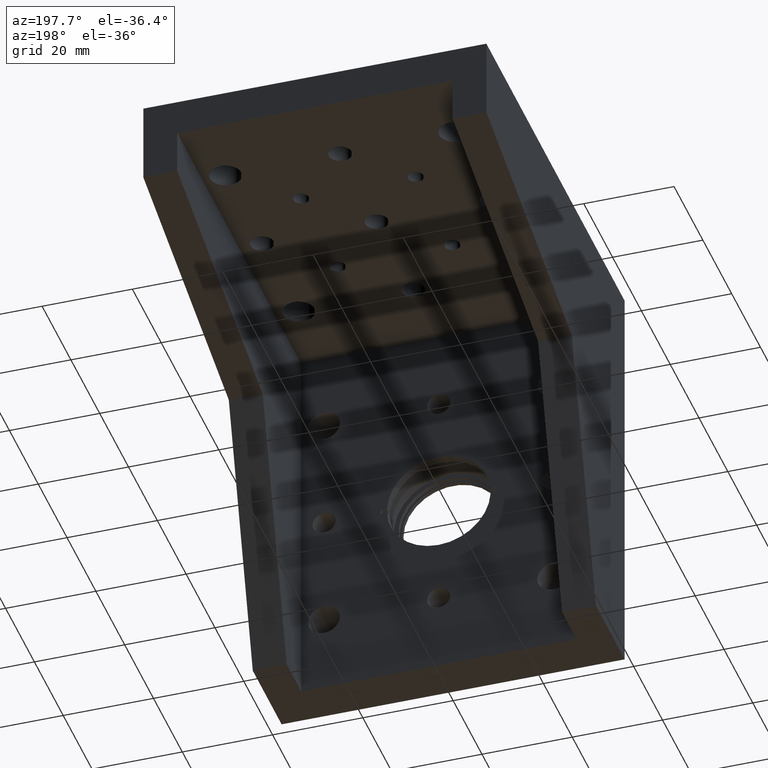
[diagram: clean part render]
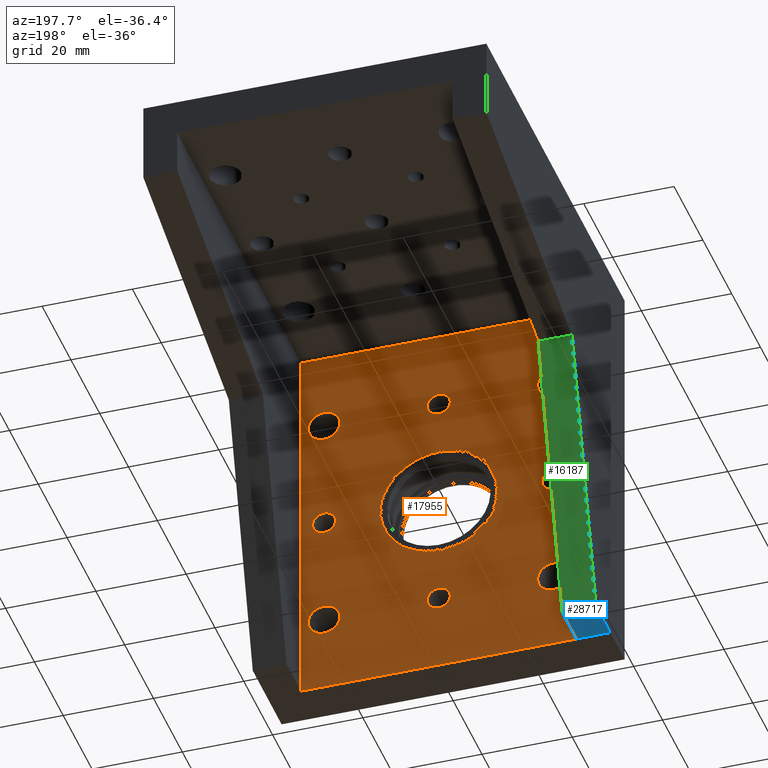
[diagram: same view with three faces highlighted in distinct colors, each labeled with its STEP entity id]
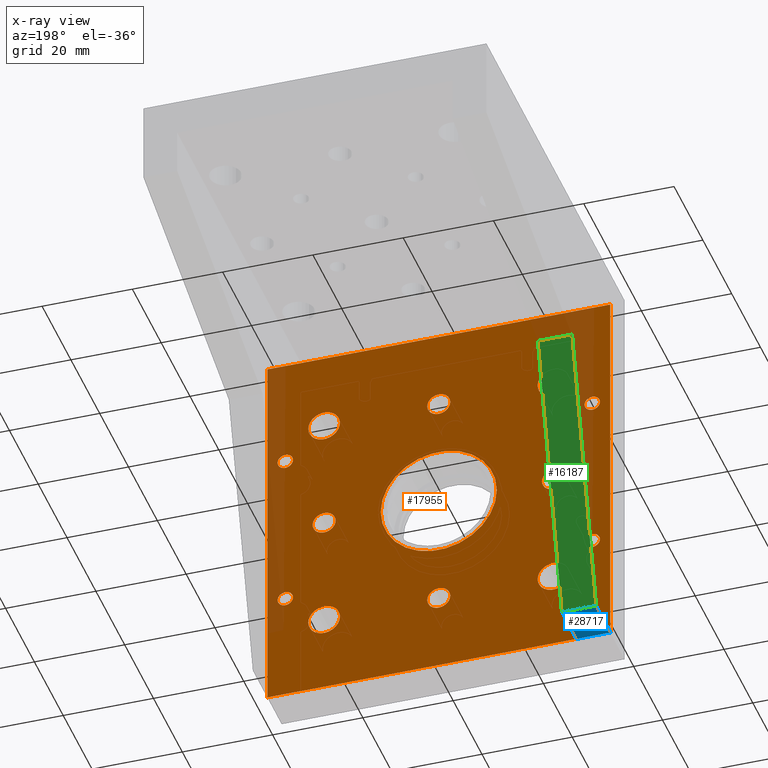
[diagram: x-ray of the same camera — body ghosted, the three highlighted faces saturated]
A machine part, auxiliary view with three faces highlighted in distinct colors.
The next image is the same camera in x-ray (body ghosted, the three faces saturated) — at least one of them is partly hidden behind the body in this view.
Their STEP definitions:

[orange] entity #17955 — the highlighted planar face has unit normal (-0, -1, -0).
#47 = DIRECTION ( 'NONE',  ( 1.000000000000000000, 0.0000000000000000000, 0.0000000000000000000 ) ) ;
#225 = DIRECTION ( 'NONE',  ( -1.848892746611748400E-031, -1.000000000000000000, -1.224606353822377300E-016 ) ) ;
#242 = ORIENTED_EDGE ( 'NONE', *, *, #15036, .T. ) ;
#259 = CARTESIAN_POINT ( 'NONE',  ( -38.00000000000001400, 9.999999999999996400, 43.00000000000000000 ) ) ;
#304 = CARTESIAN_POINT ( 'NONE',  ( 38.00000000000001400, 10.00000000000000700, -43.00000000000000000 ) ) ;
#504 = AXIS2_PLACEMENT_3D ( 'NONE', #18998, #33870, #18617 ) ;
#654 = AXIS2_PLACEMENT_3D ( 'NONE', #16160, #2184, #29336 ) ;
#763 = EDGE_CURVE ( 'NONE', #22957, #20616, #25033, .T. ) ;
#830 = FACE_OUTER_BOUND ( 'NONE', #5810, .T. ) ;
#852 = EDGE_CURVE ( 'NONE', #34558, #22349, #23299, .T. ) ;
#951 = ORIENTED_EDGE ( 'NONE', *, *, #7861, .T. ) ;
#955 = VECTOR ( 'NONE', #6262, 1000.000000000000000 ) ;
#1170 = EDGE_CURVE ( 'NONE', #20873, #17812, #14758, .T. ) ;
#1284 = EDGE_CURVE ( 'NONE', #34166, #33123, #23261, .T. ) ;
#1398 = VERTEX_POINT ( 'NONE', #31282 ) ;
#1438 = CIRCLE ( 'NONE', #17291, 1.700000000000000200 ) ;
#1492 = DIRECTION ( 'NONE',  ( -1.848892746611748400E-031, -1.000000000000000000, -1.224606353822377300E-016 ) ) ;
#1662 = CIRCLE ( 'NONE', #18505, 12.85000000000000000 ) ;
#1780 = CARTESIAN_POINT ( 'NONE',  ( 38.00000000000001400, 9.999999999999996400, 43.00000000000000000 ) ) ;
#1882 = ORIENTED_EDGE ( 'NONE', *, *, #23996, .T. ) ;
#1932 = CARTESIAN_POINT ( 'NONE',  ( 32.30000000000000400, 10.00000000000000000, 18.00000000000000000 ) ) ;
#2066 = DIRECTION ( 'NONE',  ( -1.848892746611748400E-031, -1.000000000000000000, -1.224606353822377300E-016 ) ) ;
#2123 = CIRCLE ( 'NONE', #35042, 3.499999999999989300 ) ;
#2184 = DIRECTION ( 'NONE',  ( -1.848892746611748400E-031, -1.000000000000000000, -1.224606353822377300E-016 ) ) ;
#2191 = DIRECTION ( 'NONE',  ( -1.000000000000000000, 0.0000000000000000000, -3.772338983012584600E-032 ) ) ;
#2318 = ORIENTED_EDGE ( 'NONE', *, *, #33200, .F. ) ;
#2512 = CARTESIAN_POINT ( 'NONE',  ( 21.90000000000000900, 9.999999999999992900, 25.40000000000000200 ) ) ;
#2517 = CARTESIAN_POINT ( 'NONE',  ( -34.00000000000000000, 10.00000000000000000, 18.00000000000000000 ) ) ;
#2623 = ORIENTED_EDGE ( 'NONE', *, *, #13317, .T. ) ;
#2660 = VERTEX_POINT ( 'NONE', #26675 ) ;
#2777 = DIRECTION ( 'NONE',  ( -1.848892746611748400E-031, -1.000000000000000000, -1.224606353822377300E-016 ) ) ;
#2965 = FACE_BOUND ( 'NONE', #29286, .T. ) ;
#2986 = ORIENTED_EDGE ( 'NONE', *, *, #22181, .T. ) ;
#2997 = DIRECTION ( 'NONE',  ( -1.600897037462275600E-047, -1.000000000000000000, -1.224606353822377000E-016 ) ) ;
#3056 = CIRCLE ( 'NONE', #31000, 2.552699999999987800 ) ;
#3091 = AXIS2_PLACEMENT_3D ( 'NONE', #16680, #30211, #8727 ) ;
#3243 = EDGE_CURVE ( 'NONE', #34322, #29258, #1438, .T. ) ;
#3246 = CARTESIAN_POINT ( 'NONE',  ( 27.95269999999998600, 10.00000000000000400, -1.101245626367893000E-015 ) ) ;
#3390 = CARTESIAN_POINT ( 'NONE',  ( -38.00000000000001400, 9.999999999999996400, 43.00000000000000000 ) ) ;
#3413 = FACE_BOUND ( 'NONE', #23402, .T. ) ;
#3460 = DIRECTION ( 'NONE',  ( 1.000000000000000000, 0.0000000000000000000, 0.0000000000000000000 ) ) ;
#3878 = EDGE_CURVE ( 'NONE', #16671, #21569, #13334, .T. ) ;
#3943 = DIRECTION ( 'NONE',  ( -1.848892746611748400E-031, -1.000000000000000000, -1.224606353822377300E-016 ) ) ;
#4022 = CARTESIAN_POINT ( 'NONE',  ( 25.39999999999999900, 10.00000000000000000, -25.39999999999999900 ) ) ;
#4267 = VERTEX_POINT ( 'NONE', #2512 ) ;
#4319 = AXIS2_PLACEMENT_3D ( 'NONE', #12394, #29000, #7027 ) ;
#4323 = VERTEX_POINT ( 'NONE', #13481 ) ;
#4403 = ORIENTED_EDGE ( 'NONE', *, *, #3878, .F. ) ;
#4453 = CARTESIAN_POINT ( 'NONE',  ( 34.00000000000000000, 10.00000000000000000, 18.00000000000000000 ) ) ;
#4573 = ORIENTED_EDGE ( 'NONE', *, *, #852, .F. ) ;
#4772 = CIRCLE ( 'NONE', #8536, 3.499999999999989300 ) ;
#4784 = EDGE_CURVE ( 'NONE', #4323, #14611, #2123, .T. ) ;
#4795 = DIRECTION ( 'NONE',  ( 1.000000000000000000, 0.0000000000000000000, 0.0000000000000000000 ) ) ;
#4810 = CARTESIAN_POINT ( 'NONE',  ( -22.84730000000001100, 10.00000000000000400, 5.119960113300660700E-015 ) ) ;
#4877 = CARTESIAN_POINT ( 'NONE',  ( 25.39999999999999900, 10.00000000000000000, -25.39999999999999900 ) ) ;
#4955 = CIRCLE ( 'NONE', #14831, 2.552699999999987800 ) ;
#5127 = CARTESIAN_POINT ( 'NONE',  ( 0.0000000000000000000, 10.00000000000000200, 0.0000000000000000000 ) ) ;
#5318 = AXIS2_PLACEMENT_3D ( 'NONE', #11110, #225, #6363 ) ;
#5429 = AXIS2_PLACEMENT_3D ( 'NONE', #24241, #13880, #18384 ) ;
#5496 = ORIENTED_EDGE ( 'NONE', *, *, #13835, .F. ) ;
#5693 = CARTESIAN_POINT ( 'NONE',  ( 22.84730000000001100, 10.00000000000000400, -8.015580378750519000E-016 ) ) ;
#5806 = AXIS2_PLACEMENT_3D ( 'NONE', #16777, #8358, #29960 ) ;
#5810 = EDGE_LOOP ( 'NONE', ( #17213, #4403, #5496, #23267 ) ) ;
#5987 = CARTESIAN_POINT ( 'NONE',  ( -38.00000000000001400, 10.00000000000000700, -43.00000000000000000 ) ) ;
#5989 = FACE_BOUND ( 'NONE', #24573, .T. ) ;
#6101 = DIRECTION ( 'NONE',  ( -1.848892746611748400E-031, -1.000000000000000000, -1.224606353822377300E-016 ) ) ;
#6262 = DIRECTION ( 'NONE',  ( -1.000000000000000000, 2.189528850507526700E-047, -4.806702261571226000E-032 ) ) ;
#6333 = VERTEX_POINT ( 'NONE', #18490 ) ;
#6359 = VERTEX_POINT ( 'NONE', #24230 ) ;
#6363 = DIRECTION ( 'NONE',  ( 1.000000000000000000, 0.0000000000000000000, 0.0000000000000000000 ) ) ;
#6508 = CARTESIAN_POINT ( 'NONE',  ( 38.00000000000001400, 9.999999999999996400, 43.00000000000000000 ) ) ;
#6712 = ORIENTED_EDGE ( 'NONE', *, *, #1284, .F. ) ;
#6834 = EDGE_LOOP ( 'NONE', ( #9305, #4573 ) ) ;
#6985 = ORIENTED_EDGE ( 'NONE', *, *, #12533, .T. ) ;
#6996 = DIRECTION ( 'NONE',  ( 1.000000000000000000, 0.0000000000000000000, 0.0000000000000000000 ) ) ;
#7027 = DIRECTION ( 'NONE',  ( -1.000000000000000000, 0.0000000000000000000, 0.0000000000000000000 ) ) ;
#7037 = CARTESIAN_POINT ( 'NONE',  ( -35.70000000000000300, 10.00000000000000400, -18.00000000000000400 ) ) ;
#7205 = DIRECTION ( 'NONE',  ( 5.493374013224255900E-032, -1.224606353822377800E-016, 1.000000000000000000 ) ) ;
#7415 = CARTESIAN_POINT ( 'NONE',  ( -28.89999999999998800, 9.999999999999992900, 25.39999999999999900 ) ) ;
#7558 = DIRECTION ( 'NONE',  ( -1.848892746611748400E-031, -1.000000000000000000, -1.224606353822377300E-016 ) ) ;
#7800 = AXIS2_PLACEMENT_3D ( 'NONE', #21201, #10047, #15520 ) ;
#7861 = EDGE_CURVE ( 'NONE', #11446, #1398, #8829, .T. ) ;
#8349 = VERTEX_POINT ( 'NONE', #7037 ) ;
#8358 = DIRECTION ( 'NONE',  ( 1.848892746611748400E-031, 1.000000000000000000, 1.224606353822377300E-016 ) ) ;
#8517 = CARTESIAN_POINT ( 'NONE',  ( -25.39999999999999900, 10.00000000000000400, 5.419647701793501300E-015 ) ) ;
#8536 = AXIS2_PLACEMENT_3D ( 'NONE', #24478, #2777, #16379 ) ;
#8590 = VERTEX_POINT ( 'NONE', #13665 ) ;
#8602 = ORIENTED_EDGE ( 'NONE', *, *, #1170, .F. ) ;
#8641 = CARTESIAN_POINT ( 'NONE',  ( -3.627410363077836500E-015, 10.00000000000000000, 25.39999999999999900 ) ) ;
#8686 = VERTEX_POINT ( 'NONE', #25237 ) ;
#8727 = DIRECTION ( 'NONE',  ( -1.000000000000000000, 0.0000000000000000000, -3.772338983012584600E-032 ) ) ;
#8829 = CIRCLE ( 'NONE', #504, 3.499999999999989300 ) ;
#8830 = EDGE_LOOP ( 'NONE', ( #33685, #1882 ) ) ;
#8882 = CIRCLE ( 'NONE', #5318, 3.499999999999989300 ) ;
#9305 = ORIENTED_EDGE ( 'NONE', *, *, #26270, .F. ) ;
#9331 = EDGE_LOOP ( 'NONE', ( #30726, #31301 ) ) ;
#9474 = ORIENTED_EDGE ( 'NONE', *, *, #11962, .F. ) ;
#9612 = CARTESIAN_POINT ( 'NONE',  ( 32.30000000000000400, 10.00000000000000400, -18.00000000000000400 ) ) ;
#9715 = DIRECTION ( 'NONE',  ( 1.848892746611748400E-031, 1.000000000000000000, 1.224606353822377300E-016 ) ) ;
#9819 = FACE_BOUND ( 'NONE', #20405, .T. ) ;
#10047 = DIRECTION ( 'NONE',  ( -1.848892746611748400E-031, -1.000000000000000000, -1.224606353822377300E-016 ) ) ;
#10282 = EDGE_CURVE ( 'NONE', #18887, #11354, #3056, .T. ) ;
#10403 = ORIENTED_EDGE ( 'NONE', *, *, #18137, .T. ) ;
#10507 = DIRECTION ( 'NONE',  ( 1.848892746611748400E-031, 1.000000000000000000, 1.224606353822377300E-016 ) ) ;
#10795 = ORIENTED_EDGE ( 'NONE', *, *, #17827, .T. ) ;
#11110 = CARTESIAN_POINT ( 'NONE',  ( 25.39999999999999900, 9.999999999999992900, 25.40000000000000200 ) ) ;
#11113 = DIRECTION ( 'NONE',  ( 1.000000000000000000, -2.189528850507526700E-047, 4.806702261571226000E-032 ) ) ;
#11354 = VERTEX_POINT ( 'NONE', #34770 ) ;
#11446 = VERTEX_POINT ( 'NONE', #7415 ) ;
#11471 = CARTESIAN_POINT ( 'NONE',  ( -25.39999999999999900, 10.00000000000000000, -25.39999999999999900 ) ) ;
#11608 = VERTEX_POINT ( 'NONE', #304 ) ;
#11807 = AXIS2_PLACEMENT_3D ( 'NONE', #2517, #32779, #13261 ) ;
#11962 = EDGE_CURVE ( 'NONE', #33123, #34166, #4955, .T. ) ;
#12394 = CARTESIAN_POINT ( 'NONE',  ( -25.39999999999999900, 10.00000000000000400, 5.419647701793501300E-015 ) ) ;
#12474 = CARTESIAN_POINT ( 'NONE',  ( 35.70000000000000300, 10.00000000000000000, 18.00000000000000000 ) ) ;
#12533 = EDGE_CURVE ( 'NONE', #15751, #2660, #16459, .T. ) ;
#12574 = CARTESIAN_POINT ( 'NONE',  ( -21.90000000000000900, 10.00000000000000000, -25.39999999999999900 ) ) ;
#12617 = CIRCLE ( 'NONE', #654, 1.700000000000000200 ) ;
#12788 = AXIS2_PLACEMENT_3D ( 'NONE', #4022, #1492, #22966 ) ;
#13009 = EDGE_CURVE ( 'NONE', #6333, #28633, #12617, .T. ) ;
#13137 = VECTOR ( 'NONE', #31336, 1000.000000000000000 ) ;
#13230 = CIRCLE ( 'NONE', #11807, 1.700000000000000200 ) ;
#13261 = DIRECTION ( 'NONE',  ( 1.000000000000000000, 0.0000000000000000000, 0.0000000000000000000 ) ) ;
#13317 = EDGE_CURVE ( 'NONE', #28633, #6333, #17684, .T. ) ;
#13334 = LINE ( 'NONE', #3390, #955 ) ;
#13416 = CARTESIAN_POINT ( 'NONE',  ( 12.85000000000000000, 10.00000000000000200, 1.022598277684278700E-015 ) ) ;
#13481 = CARTESIAN_POINT ( 'NONE',  ( 28.89999999999998800, 10.00000000000000000, -25.39999999999999900 ) ) ;
#13556 = CARTESIAN_POINT ( 'NONE',  ( 34.00000000000000000, 10.00000000000000000, 18.00000000000000000 ) ) ;
#13665 = CARTESIAN_POINT ( 'NONE',  ( -32.30000000000000400, 10.00000000000000400, -18.00000000000000400 ) ) ;
#13835 = EDGE_CURVE ( 'NONE', #11608, #16671, #20158, .T. ) ;
#13880 = DIRECTION ( 'NONE',  ( 1.848892746611748400E-031, 1.000000000000000000, 1.224606353822377300E-016 ) ) ;
#13918 = EDGE_CURVE ( 'NONE', #8349, #8590, #30056, .T. ) ;
#14051 = AXIS2_PLACEMENT_3D ( 'NONE', #8517, #24447, #19541 ) ;
#14317 = CARTESIAN_POINT ( 'NONE',  ( -25.39999999999999900, 10.00000000000000000, -25.39999999999999900 ) ) ;
#14595 = EDGE_LOOP ( 'NONE', ( #2986, #10403 ) ) ;
#14611 = VERTEX_POINT ( 'NONE', #19495 ) ;
#14673 = CARTESIAN_POINT ( 'NONE',  ( 25.39999999999999900, 9.999999999999992900, 25.40000000000000200 ) ) ;
#14725 = EDGE_LOOP ( 'NONE', ( #242, #951 ) ) ;
#14758 = CIRCLE ( 'NONE', #14051, 2.552699999999987800 ) ;
#14831 = AXIS2_PLACEMENT_3D ( 'NONE', #34613, #32220, #2191 ) ;
#15036 = EDGE_CURVE ( 'NONE', #1398, #11446, #4772, .T. ) ;
#15115 = AXIS2_PLACEMENT_3D ( 'NONE', #25270, #30793, #15119 ) ;
#15119 = DIRECTION ( 'NONE',  ( 1.000000000000000000, 0.0000000000000000000, 0.0000000000000000000 ) ) ;
#15257 = DIRECTION ( 'NONE',  ( 1.000000000000000000, 0.0000000000000000000, 0.0000000000000000000 ) ) ;
#15362 = FACE_BOUND ( 'NONE', #14725, .T. ) ;
#15454 = AXIS2_PLACEMENT_3D ( 'NONE', #5987, #2997, #11113 ) ;
#15460 = CARTESIAN_POINT ( 'NONE',  ( -27.95269999999998600, 10.00000000000000400, 5.419647701793501300E-015 ) ) ;
#15520 = DIRECTION ( 'NONE',  ( 1.000000000000000000, 0.0000000000000000000, 0.0000000000000000000 ) ) ;
#15751 = VERTEX_POINT ( 'NONE', #31358 ) ;
#15881 = ORIENTED_EDGE ( 'NONE', *, *, #10282, .F. ) ;
#15931 = EDGE_LOOP ( 'NONE', ( #8602, #2318 ) ) ;
#15978 = AXIS2_PLACEMENT_3D ( 'NONE', #26886, #7558, #4795 ) ;
#16160 = CARTESIAN_POINT ( 'NONE',  ( 34.00000000000000000, 10.00000000000000400, -18.00000000000000400 ) ) ;
#16368 = DIRECTION ( 'NONE',  ( -1.000000000000000000, 0.0000000000000000000, 0.0000000000000000000 ) ) ;
#16379 = DIRECTION ( 'NONE',  ( 1.000000000000000000, 0.0000000000000000000, 0.0000000000000000000 ) ) ;
#16459 = CIRCLE ( 'NONE', #15978, 1.700000000000000200 ) ;
#16671 = VERTEX_POINT ( 'NONE', #6508 ) ;
#16680 = CARTESIAN_POINT ( 'NONE',  ( 25.39999999999999900, 10.00000000000000400, -8.015580378750518000E-016 ) ) ;
#16777 = CARTESIAN_POINT ( 'NONE',  ( -3.627410363077836500E-015, 10.00000000000000700, -25.39999999999999900 ) ) ;
#16822 = DIRECTION ( 'NONE',  ( 1.848892746611748400E-031, 1.000000000000000000, 1.224606353822377300E-016 ) ) ;
#17144 = CIRCLE ( 'NONE', #15115, 1.700000000000000200 ) ;
#17206 = VECTOR ( 'NONE', #7205, 1000.000000000000000 ) ;
#17213 = ORIENTED_EDGE ( 'NONE', *, *, #18856, .F. ) ;
#17291 = AXIS2_PLACEMENT_3D ( 'NONE', #13556, #21506, #47 ) ;
#17296 = ORIENTED_EDGE ( 'NONE', *, *, #763, .F. ) ;
#17436 = CIRCLE ( 'NONE', #22852, 2.552699999999987800 ) ;
#17599 = CARTESIAN_POINT ( 'NONE',  ( -28.89999999999998800, 10.00000000000000000, -25.39999999999999900 ) ) ;
#17684 = CIRCLE ( 'NONE', #20745, 1.700000000000000200 ) ;
#17812 = VERTEX_POINT ( 'NONE', #4810 ) ;
#17827 = EDGE_CURVE ( 'NONE', #2660, #15751, #13230, .T. ) ;
#17955 = ADVANCED_FACE ( 'NONE', ( #15362, #3413, #2965, #22585, #27766, #34216, #31642, #26465, #29060, #20449, #21711, #9819, #5989, #830 ), #33245, .F. ) ;
#18137 = EDGE_CURVE ( 'NONE', #20843, #29285, #24279, .T. ) ;
#18384 = DIRECTION ( 'NONE',  ( -1.000000000000000000, 0.0000000000000000000, 0.0000000000000000000 ) ) ;
#18490 = CARTESIAN_POINT ( 'NONE',  ( 35.70000000000000300, 10.00000000000000400, -18.00000000000000400 ) ) ;
#18505 = AXIS2_PLACEMENT_3D ( 'NONE', #27253, #21927, #32785 ) ;
#18617 = DIRECTION ( 'NONE',  ( 1.000000000000000000, 0.0000000000000000000, 0.0000000000000000000 ) ) ;
#18856 = EDGE_CURVE ( 'NONE', #21569, #8686, #31998, .T. ) ;
#18887 = VERTEX_POINT ( 'NONE', #23274 ) ;
#18998 = CARTESIAN_POINT ( 'NONE',  ( -25.39999999999999900, 9.999999999999992900, 25.39999999999999900 ) ) ;
#19364 = ORIENTED_EDGE ( 'NONE', *, *, #4784, .T. ) ;
#19495 = CARTESIAN_POINT ( 'NONE',  ( 21.90000000000000900, 10.00000000000000000, -25.39999999999999900 ) ) ;
#19541 = DIRECTION ( 'NONE',  ( -1.000000000000000000, 0.0000000000000000000, 0.0000000000000000000 ) ) ;
#19888 = DIRECTION ( 'NONE',  ( 1.000000000000000000, 0.0000000000000000000, 0.0000000000000000000 ) ) ;
#19918 = AXIS2_PLACEMENT_3D ( 'NONE', #5127, #10507, #35373 ) ;
#20158 = LINE ( 'NONE', #1780, #17206 ) ;
#20244 = DIRECTION ( 'NONE',  ( 1.000000000000000000, 0.0000000000000000000, 0.0000000000000000000 ) ) ;
#20405 = EDGE_LOOP ( 'NONE', ( #33790, #2623 ) ) ;
#20449 = FACE_BOUND ( 'NONE', #9331, .T. ) ;
#20616 = VERTEX_POINT ( 'NONE', #30308 ) ;
#20625 = DIRECTION ( 'NONE',  ( -1.000000000000000000, 0.0000000000000000000, 0.0000000000000000000 ) ) ;
#20745 = AXIS2_PLACEMENT_3D ( 'NONE', #31725, #2066, #6996 ) ;
#20843 = VERTEX_POINT ( 'NONE', #17599 ) ;
#20873 = VERTEX_POINT ( 'NONE', #15460 ) ;
#21201 = CARTESIAN_POINT ( 'NONE',  ( -34.00000000000000000, 10.00000000000000400, -18.00000000000000400 ) ) ;
#21202 = EDGE_CURVE ( 'NONE', #14611, #4323, #22300, .T. ) ;
#21407 = CIRCLE ( 'NONE', #5429, 2.552699999999987800 ) ;
#21506 = DIRECTION ( 'NONE',  ( -1.848892746611748400E-031, -1.000000000000000000, -1.224606353822377300E-016 ) ) ;
#21569 = VERTEX_POINT ( 'NONE', #259 ) ;
#21575 = CIRCLE ( 'NONE', #32347, 3.499999999999989300 ) ;
#21711 = FACE_BOUND ( 'NONE', #8830, .T. ) ;
#21927 = DIRECTION ( 'NONE',  ( 1.848892746611748400E-031, 1.000000000000000000, 1.224606353822377300E-016 ) ) ;
#22181 = EDGE_CURVE ( 'NONE', #29285, #20843, #27838, .T. ) ;
#22300 = CIRCLE ( 'NONE', #12788, 3.499999999999989300 ) ;
#22349 = VERTEX_POINT ( 'NONE', #23346 ) ;
#22585 = FACE_BOUND ( 'NONE', #14595, .T. ) ;
#22657 = LINE ( 'NONE', #28532, #32996 ) ;
#22852 = AXIS2_PLACEMENT_3D ( 'NONE', #26169, #9715, #20625 ) ;
#22957 = VERTEX_POINT ( 'NONE', #13416 ) ;
#22966 = DIRECTION ( 'NONE',  ( 1.000000000000000000, 0.0000000000000000000, 0.0000000000000000000 ) ) ;
#23261 = CIRCLE ( 'NONE', #3091, 2.552699999999987800 ) ;
#23267 = ORIENTED_EDGE ( 'NONE', *, *, #28083, .F. ) ;
#23274 = CARTESIAN_POINT ( 'NONE',  ( 2.552699999999984200, 10.00000000000000000, 25.39999999999999900 ) ) ;
#23299 = CIRCLE ( 'NONE', #5806, 2.552699999999987800 ) ;
#23346 = CARTESIAN_POINT ( 'NONE',  ( -2.552699999999990900, 10.00000000000000700, -25.39999999999999900 ) ) ;
#23402 = EDGE_LOOP ( 'NONE', ( #29870, #29803 ) ) ;
#23862 = DIRECTION ( 'NONE',  ( -1.848892746611748400E-031, -1.000000000000000000, -1.224606353822377300E-016 ) ) ;
#23996 = EDGE_CURVE ( 'NONE', #29258, #34322, #31213, .T. ) ;
#24230 = CARTESIAN_POINT ( 'NONE',  ( 28.89999999999998800, 9.999999999999992900, 25.40000000000000200 ) ) ;
#24241 = CARTESIAN_POINT ( 'NONE',  ( -3.627410363077836500E-015, 10.00000000000000700, -25.39999999999999900 ) ) ;
#24279 = CIRCLE ( 'NONE', #29449, 3.499999999999989300 ) ;
#24447 = DIRECTION ( 'NONE',  ( 1.848892746611748400E-031, 1.000000000000000000, 1.224606353822377300E-016 ) ) ;
#24478 = CARTESIAN_POINT ( 'NONE',  ( -25.39999999999999900, 9.999999999999992900, 25.39999999999999900 ) ) ;
#24573 = EDGE_LOOP ( 'NONE', ( #33244, #17296 ) ) ;
#24924 = DIRECTION ( 'NONE',  ( -1.848892746611748400E-031, -1.000000000000000000, -1.224606353822377300E-016 ) ) ;
#25033 = CIRCLE ( 'NONE', #19918, 12.85000000000000000 ) ;
#25237 = CARTESIAN_POINT ( 'NONE',  ( -38.00000000000001400, 10.00000000000000700, -43.00000000000000000 ) ) ;
#25270 = CARTESIAN_POINT ( 'NONE',  ( -34.00000000000000000, 10.00000000000000400, -18.00000000000000400 ) ) ;
#25930 = CARTESIAN_POINT ( 'NONE',  ( -38.00000000000001400, 9.999999999999996400, 43.00000000000000000 ) ) ;
#26169 = CARTESIAN_POINT ( 'NONE',  ( -3.627410363077836500E-015, 10.00000000000000000, 25.39999999999999900 ) ) ;
#26183 = EDGE_LOOP ( 'NONE', ( #6985, #10795 ) ) ;
#26270 = EDGE_CURVE ( 'NONE', #22349, #34558, #21407, .T. ) ;
#26465 = FACE_BOUND ( 'NONE', #6834, .T. ) ;
#26675 = CARTESIAN_POINT ( 'NONE',  ( -35.70000000000000300, 10.00000000000000000, 18.00000000000000000 ) ) ;
#26886 = CARTESIAN_POINT ( 'NONE',  ( -34.00000000000000000, 10.00000000000000000, 18.00000000000000000 ) ) ;
#27097 = CIRCLE ( 'NONE', #4319, 2.552699999999987800 ) ;
#27253 = CARTESIAN_POINT ( 'NONE',  ( 0.0000000000000000000, 10.00000000000000200, 0.0000000000000000000 ) ) ;
#27499 = CARTESIAN_POINT ( 'NONE',  ( 2.552699999999984200, 10.00000000000000700, -25.39999999999999900 ) ) ;
#27766 = FACE_BOUND ( 'NONE', #29428, .T. ) ;
#27838 = CIRCLE ( 'NONE', #31168, 3.499999999999989300 ) ;
#28083 = EDGE_CURVE ( 'NONE', #8686, #11608, #22657, .T. ) ;
#28532 = CARTESIAN_POINT ( 'NONE',  ( -38.00000000000001400, 10.00000000000000700, -43.00000000000000000 ) ) ;
#28633 = VERTEX_POINT ( 'NONE', #9612 ) ;
#29000 = DIRECTION ( 'NONE',  ( 1.848892746611748400E-031, 1.000000000000000000, 1.224606353822377300E-016 ) ) ;
#29060 = FACE_BOUND ( 'NONE', #26183, .T. ) ;
#29258 = VERTEX_POINT ( 'NONE', #1932 ) ;
#29285 = VERTEX_POINT ( 'NONE', #12574 ) ;
#29286 = EDGE_LOOP ( 'NONE', ( #19364, #32700 ) ) ;
#29295 = EDGE_CURVE ( 'NONE', #11354, #18887, #17436, .T. ) ;
#29336 = DIRECTION ( 'NONE',  ( 1.000000000000000000, 0.0000000000000000000, 0.0000000000000000000 ) ) ;
#29428 = EDGE_LOOP ( 'NONE', ( #9474, #6712 ) ) ;
#29449 = AXIS2_PLACEMENT_3D ( 'NONE', #14317, #6101, #19888 ) ;
#29505 = EDGE_CURVE ( 'NONE', #20616, #22957, #1662, .T. ) ;
#29803 = ORIENTED_EDGE ( 'NONE', *, *, #31726, .T. ) ;
#29870 = ORIENTED_EDGE ( 'NONE', *, *, #30611, .T. ) ;
#29960 = DIRECTION ( 'NONE',  ( -1.000000000000000000, 0.0000000000000000000, 0.0000000000000000000 ) ) ;
#30056 = CIRCLE ( 'NONE', #7800, 1.700000000000000200 ) ;
#30211 = DIRECTION ( 'NONE',  ( 1.848892746611748400E-031, 1.000000000000000000, 1.224606353822377300E-016 ) ) ;
#30308 = CARTESIAN_POINT ( 'NONE',  ( -12.85000000000000000, 10.00000000000000200, -6.176612406119025400E-031 ) ) ;
#30611 = EDGE_CURVE ( 'NONE', #6359, #4267, #8882, .T. ) ;
#30726 = ORIENTED_EDGE ( 'NONE', *, *, #35359, .T. ) ;
#30793 = DIRECTION ( 'NONE',  ( -1.848892746611748400E-031, -1.000000000000000000, -1.224606353822377300E-016 ) ) ;
#31000 = AXIS2_PLACEMENT_3D ( 'NONE', #8641, #16822, #16368 ) ;
#31168 = AXIS2_PLACEMENT_3D ( 'NONE', #11471, #24924, #3460 ) ;
#31213 = CIRCLE ( 'NONE', #33768, 1.700000000000000200 ) ;
#31282 = CARTESIAN_POINT ( 'NONE',  ( -21.90000000000000900, 9.999999999999992900, 25.39999999999999900 ) ) ;
#31301 = ORIENTED_EDGE ( 'NONE', *, *, #13918, .T. ) ;
#31336 = DIRECTION ( 'NONE',  ( -5.493374013224255900E-032, 1.224606353822377800E-016, -1.000000000000000000 ) ) ;
#31358 = CARTESIAN_POINT ( 'NONE',  ( -32.30000000000000400, 10.00000000000000000, 18.00000000000000000 ) ) ;
#31534 = DIRECTION ( 'NONE',  ( 1.000000000000000000, -2.189528850507526700E-047, 4.806702261571226000E-032 ) ) ;
#31642 = FACE_BOUND ( 'NONE', #15931, .T. ) ;
#31725 = CARTESIAN_POINT ( 'NONE',  ( 34.00000000000000000, 10.00000000000000400, -18.00000000000000400 ) ) ;
#31726 = EDGE_CURVE ( 'NONE', #4267, #6359, #21575, .T. ) ;
#31776 = DIRECTION ( 'NONE',  ( -1.848892746611748400E-031, -1.000000000000000000, -1.224606353822377300E-016 ) ) ;
#31949 = DIRECTION ( 'NONE',  ( 1.000000000000000000, 0.0000000000000000000, 0.0000000000000000000 ) ) ;
#31998 = LINE ( 'NONE', #25930, #13137 ) ;
#32220 = DIRECTION ( 'NONE',  ( 1.848892746611748400E-031, 1.000000000000000000, 1.224606353822377300E-016 ) ) ;
#32347 = AXIS2_PLACEMENT_3D ( 'NONE', #14673, #3943, #20244 ) ;
#32661 = EDGE_LOOP ( 'NONE', ( #34446, #15881 ) ) ;
#32700 = ORIENTED_EDGE ( 'NONE', *, *, #21202, .T. ) ;
#32779 = DIRECTION ( 'NONE',  ( -1.848892746611748400E-031, -1.000000000000000000, -1.224606353822377300E-016 ) ) ;
#32785 = DIRECTION ( 'NONE',  ( -1.000000000000000000, 0.0000000000000000000, -4.806702261571226000E-032 ) ) ;
#32996 = VECTOR ( 'NONE', #31534, 1000.000000000000000 ) ;
#33123 = VERTEX_POINT ( 'NONE', #5693 ) ;
#33200 = EDGE_CURVE ( 'NONE', #17812, #20873, #27097, .T. ) ;
#33244 = ORIENTED_EDGE ( 'NONE', *, *, #29505, .F. ) ;
#33245 = PLANE ( 'NONE',  #15454 ) ;
#33685 = ORIENTED_EDGE ( 'NONE', *, *, #3243, .T. ) ;
#33768 = AXIS2_PLACEMENT_3D ( 'NONE', #4453, #23862, #31949 ) ;
#33790 = ORIENTED_EDGE ( 'NONE', *, *, #13009, .T. ) ;
#33870 = DIRECTION ( 'NONE',  ( -1.848892746611748400E-031, -1.000000000000000000, -1.224606353822377300E-016 ) ) ;
#34166 = VERTEX_POINT ( 'NONE', #3246 ) ;
#34216 = FACE_BOUND ( 'NONE', #32661, .T. ) ;
#34322 = VERTEX_POINT ( 'NONE', #12474 ) ;
#34446 = ORIENTED_EDGE ( 'NONE', *, *, #29295, .F. ) ;
#34558 = VERTEX_POINT ( 'NONE', #27499 ) ;
#34613 = CARTESIAN_POINT ( 'NONE',  ( 25.39999999999999900, 10.00000000000000400, -8.015580378750518000E-016 ) ) ;
#34770 = CARTESIAN_POINT ( 'NONE',  ( -2.552699999999990900, 10.00000000000000000, 25.39999999999999900 ) ) ;
#35042 = AXIS2_PLACEMENT_3D ( 'NONE', #4877, #31776, #15257 ) ;
#35359 = EDGE_CURVE ( 'NONE', #8590, #8349, #17144, .T. ) ;
#35373 = DIRECTION ( 'NONE',  ( -1.000000000000000000, 0.0000000000000000000, -4.806702261571226000E-032 ) ) ;

[blue] entity #28717 — the highlighted planar face has unit normal (0, -0, 1).
#121 = ORIENTED_EDGE ( 'NONE', *, *, #9807, .F. ) ;
#1556 = ORIENTED_EDGE ( 'NONE', *, *, #30236, .T. ) ;
#1829 = DIRECTION ( 'NONE',  ( 1.000000000000000000, 1.107638233675679100E-016, -1.243874295057008800E-031 ) ) ;
#3798 = DIRECTION ( 'NONE',  ( 1.000000000000000000, 1.107638233675679100E-016, -1.243874295057008800E-031 ) ) ;
#5155 = CARTESIAN_POINT ( 'NONE',  ( -30.49999999999999600, 10.00000000000010300, -43.00000000000000000 ) ) ;
#5945 = EDGE_CURVE ( 'NONE', #32015, #24082, #24662, .T. ) ;
#7365 = CARTESIAN_POINT ( 'NONE',  ( -37.99999999999999300, 10.00000000000009900, -43.00000000000000000 ) ) ;
#7595 = DIRECTION ( 'NONE',  ( 1.368261724562709500E-031, -1.122996893064291100E-016, 1.000000000000000000 ) ) ;
#7794 = AXIS2_PLACEMENT_3D ( 'NONE', #7365, #7595, #1829 ) ;
#8792 = DIRECTION ( 'NONE',  ( 1.107638233675681700E-016, -1.000000000000000000, -1.122996893064291100E-016 ) ) ;
#9325 = VECTOR ( 'NONE', #3798, 1000.000000000000000 ) ;
#9420 = EDGE_LOOP ( 'NONE', ( #31692, #33055, #121, #1556 ) ) ;
#9807 = EDGE_CURVE ( 'NONE', #16703, #24098, #27454, .T. ) ;
#10721 = EDGE_CURVE ( 'NONE', #24098, #24082, #28693, .T. ) ;
#12847 = VECTOR ( 'NONE', #17076, 1000.000000000000000 ) ;
#13374 = CARTESIAN_POINT ( 'NONE',  ( -37.99999999999999300, 10.00000000000009900, -43.00000000000000000 ) ) ;
#16703 = VERTEX_POINT ( 'NONE', #26296 ) ;
#17076 = DIRECTION ( 'NONE',  ( 1.000000000000000000, 1.107638233675679100E-016, -1.243874295057008800E-031 ) ) ;
#19230 = CARTESIAN_POINT ( 'NONE',  ( -30.49999999999999600, 10.00000000000010300, -43.00000000000000000 ) ) ;
#19381 = CARTESIAN_POINT ( 'NONE',  ( -30.49999999999996100, 20.00000000000011400, -43.00000000000000000 ) ) ;
#23898 = FACE_OUTER_BOUND ( 'NONE', #9420, .T. ) ;
#24082 = VERTEX_POINT ( 'NONE', #5155 ) ;
#24098 = VERTEX_POINT ( 'NONE', #13374 ) ;
#24662 = LINE ( 'NONE', #19230, #30256 ) ;
#24839 = VECTOR ( 'NONE', #33299, 1000.000000000000000 ) ;
#26296 = CARTESIAN_POINT ( 'NONE',  ( -38.00000000000000700, 20.00000000000011400, -43.00000000000000000 ) ) ;
#27454 = LINE ( 'NONE', #33180, #24839 ) ;
#27908 = CARTESIAN_POINT ( 'NONE',  ( -38.00000000000000700, 20.00000000000011400, -43.00000000000000000 ) ) ;
#28490 = PLANE ( 'NONE',  #7794 ) ;
#28693 = LINE ( 'NONE', #28703, #12847 ) ;
#28703 = CARTESIAN_POINT ( 'NONE',  ( -37.99999999999999300, 10.00000000000009900, -43.00000000000000000 ) ) ;
#28717 = ADVANCED_FACE ( 'NONE', ( #23898 ), #28490, .F. ) ;
#30236 = EDGE_CURVE ( 'NONE', #16703, #32015, #34120, .T. ) ;
#30256 = VECTOR ( 'NONE', #8792, 1000.000000000000000 ) ;
#31692 = ORIENTED_EDGE ( 'NONE', *, *, #5945, .T. ) ;
#32015 = VERTEX_POINT ( 'NONE', #19381 ) ;
#33055 = ORIENTED_EDGE ( 'NONE', *, *, #10721, .F. ) ;
#33180 = CARTESIAN_POINT ( 'NONE',  ( -37.99999999999999300, 10.00000000000009900, -43.00000000000000000 ) ) ;
#33299 = DIRECTION ( 'NONE',  ( 1.107638233675681700E-016, -1.000000000000000000, -1.122996893064291100E-016 ) ) ;
#34120 = LINE ( 'NONE', #27908, #9325 ) ;

[green] entity #16187 — the highlighted planar face has unit normal (0, -0.9627, 0.2706).
#48 = ORIENTED_EDGE ( 'NONE', *, *, #30236, .F. ) ;
#133 = CARTESIAN_POINT ( 'NONE',  ( -38.00000000000000700, 20.00000000000011400, -43.00000000000000000 ) ) ;
#1038 = ORIENTED_EDGE ( 'NONE', *, *, #13214, .F. ) ;
#2800 = AXIS2_PLACEMENT_3D ( 'NONE', #20192, #3900, #7274 ) ;
#2945 = CARTESIAN_POINT ( 'NONE',  ( -30.49999999999996100, 20.00000000000011400, -43.00000000000000000 ) ) ;
#3798 = DIRECTION ( 'NONE',  ( 1.000000000000000000, 1.107638233675679100E-016, -1.243874295057008800E-031 ) ) ;
#3900 = DIRECTION ( 'NONE',  ( 1.066314185585982000E-016, -0.9626917464264785900, 0.2706004459758646300 ) ) ;
#6747 = VERTEX_POINT ( 'NONE', #28550 ) ;
#7274 = DIRECTION ( 'NONE',  ( -2.997274000125593700E-017, 0.2706004459758645800, 0.9626917464264784800 ) ) ;
#7887 = VECTOR ( 'NONE', #26639, 1000.000000000000000 ) ;
#8350 = VECTOR ( 'NONE', #10790, 1000.000000000000100 ) ;
#9325 = VECTOR ( 'NONE', #3798, 1000.000000000000000 ) ;
#10790 = DIRECTION ( 'NONE',  ( 2.997274000125593700E-017, -0.2706004459758645800, -0.9626917464264784800 ) ) ;
#11166 = EDGE_LOOP ( 'NONE', ( #19455, #48, #1038, #12931 ) ) ;
#12931 = ORIENTED_EDGE ( 'NONE', *, *, #25811, .T. ) ;
#13214 = EDGE_CURVE ( 'NONE', #6747, #16703, #27549, .T. ) ;
#16187 = ADVANCED_FACE ( 'NONE', ( #20879 ), #17474, .F. ) ;
#16703 = VERTEX_POINT ( 'NONE', #26296 ) ;
#17474 = PLANE ( 'NONE',  #2800 ) ;
#17533 = LINE ( 'NONE', #2945, #25220 ) ;
#17677 = LINE ( 'NONE', #35274, #7887 ) ;
#19381 = CARTESIAN_POINT ( 'NONE',  ( -30.49999999999996100, 20.00000000000011400, -43.00000000000000000 ) ) ;
#19455 = ORIENTED_EDGE ( 'NONE', *, *, #28427, .T. ) ;
#20192 = CARTESIAN_POINT ( 'NONE',  ( -38.00000000000000700, 20.00000000000011400, -43.00000000000000000 ) ) ;
#20879 = FACE_OUTER_BOUND ( 'NONE', #11166, .T. ) ;
#23485 = VERTEX_POINT ( 'NONE', #27434 ) ;
#25220 = VECTOR ( 'NONE', #32853, 1000.000000000000100 ) ;
#25811 = EDGE_CURVE ( 'NONE', #6747, #23485, #17677, .T. ) ;
#26296 = CARTESIAN_POINT ( 'NONE',  ( -38.00000000000000700, 20.00000000000011400, -43.00000000000000000 ) ) ;
#26639 = DIRECTION ( 'NONE',  ( 1.000000000000000000, 1.107638233675679100E-016, -1.243874295057008800E-031 ) ) ;
#27434 = CARTESIAN_POINT ( 'NONE',  ( -30.50000000000000000, 36.67539454223401000, 16.32460545776614000 ) ) ;
#27549 = LINE ( 'NONE', #133, #8350 ) ;
#27908 = CARTESIAN_POINT ( 'NONE',  ( -38.00000000000000700, 20.00000000000011400, -43.00000000000000000 ) ) ;
#28427 = EDGE_CURVE ( 'NONE', #23485, #32015, #17533, .T. ) ;
#28550 = CARTESIAN_POINT ( 'NONE',  ( -37.99999999999998600, 36.67539454223402400, 16.32460545776614000 ) ) ;
#30236 = EDGE_CURVE ( 'NONE', #16703, #32015, #34120, .T. ) ;
#32015 = VERTEX_POINT ( 'NONE', #19381 ) ;
#32853 = DIRECTION ( 'NONE',  ( 2.997274000125593700E-017, -0.2706004459758645800, -0.9626917464264784800 ) ) ;
#34120 = LINE ( 'NONE', #27908, #9325 ) ;
#35274 = CARTESIAN_POINT ( 'NONE',  ( -37.99999999999998600, 36.67539454223402400, 16.32460545776614000 ) ) ;